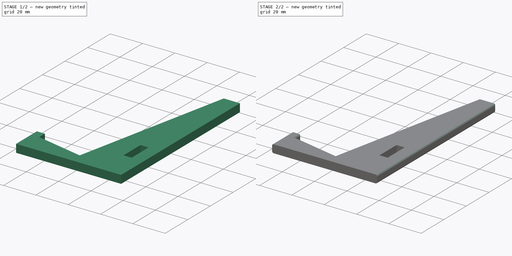
[diagram: build sequence overview — one tinted view per stage of 2, left to right]
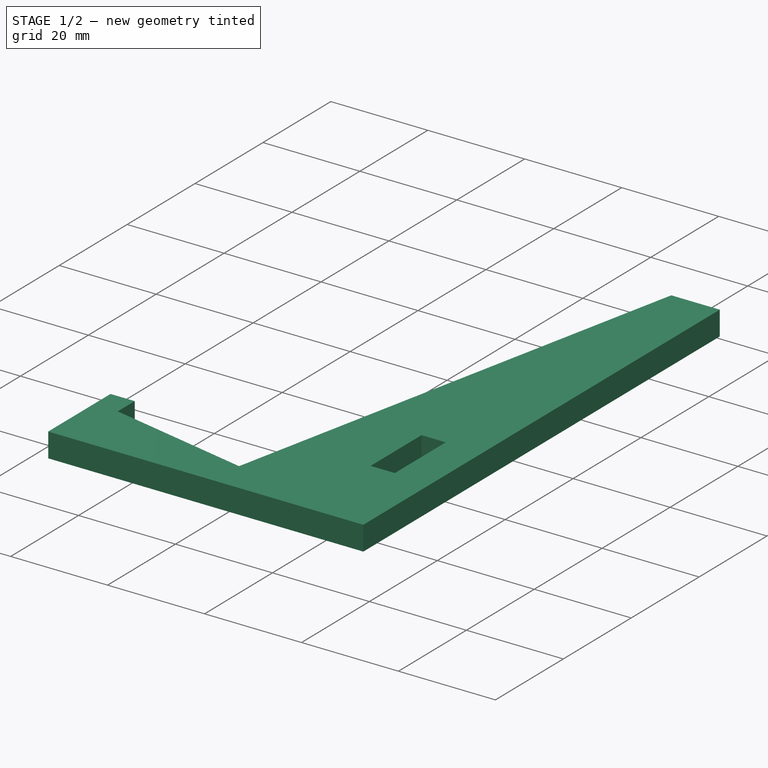
[diagram: stage 1 of 2 — iso view after this stage's code; geometry added in this stage tinted green]
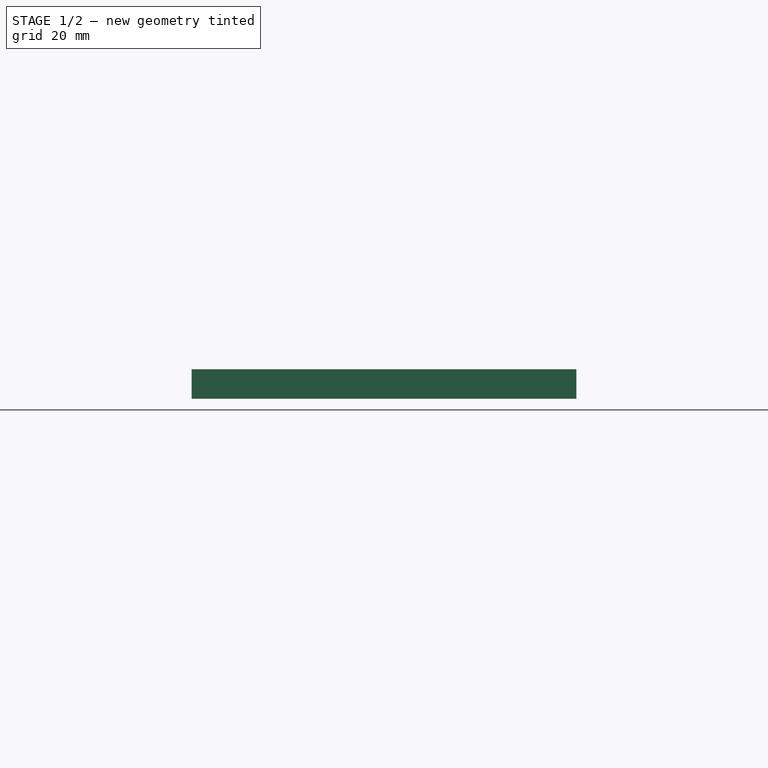
[diagram: stage 1 of 2 — front view after this stage's code; geometry added in this stage tinted green]
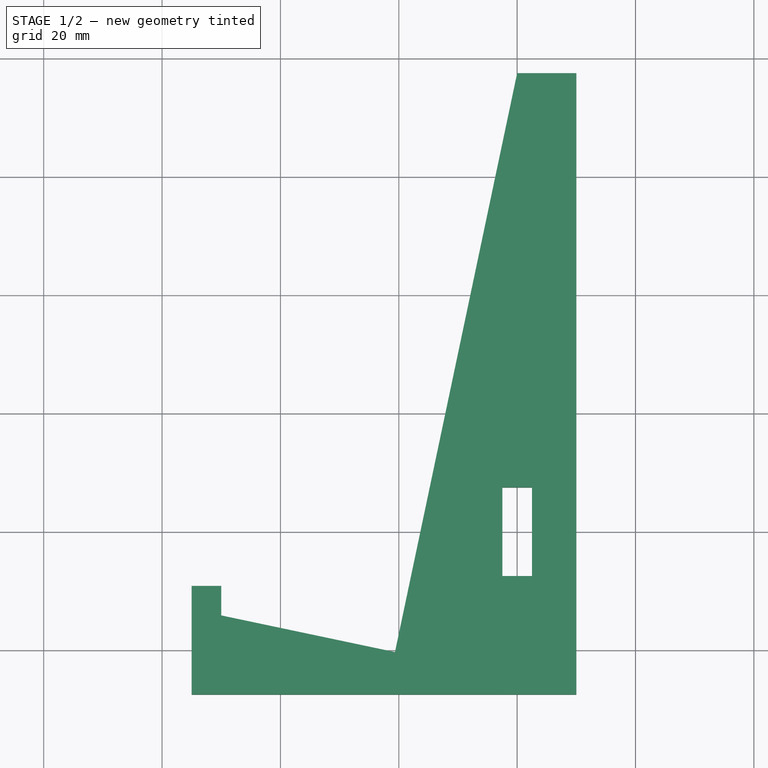
[diagram: stage 1 of 2 — top view after this stage's code; geometry added in this stage tinted green]
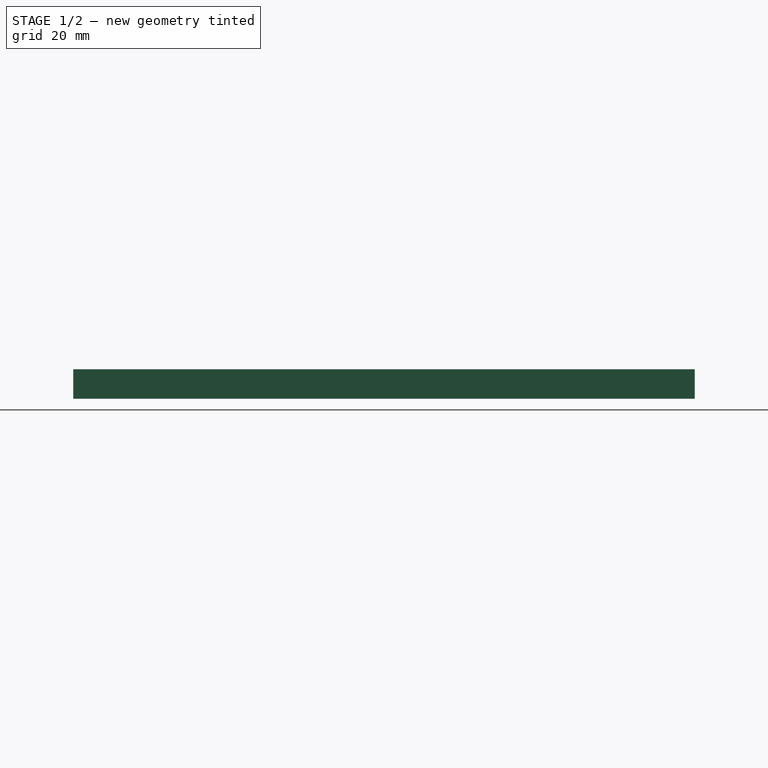
[diagram: stage 1 of 2 — right view after this stage's code; geometry added in this stage tinted green]
FCSTD DOCUMENT  (FreeCAD 1.0R39285 (Git))
Label: endplate
License: All rights reserved
LicenseURL: https://en.wikipedia.org/wiki/All_rights_reserved
objects: Sketcher::SketchObject×2, Part::Extrusion×1, Part::Fillet×1
note: 6 computed .brp shape members not serialized (recipe doc carries the construction recipe); baked Part::Feature solids carry a one-line shape summary decoded from their .brp
EXTERNAL_REF file=dims.FCStd obj=Spreadsheet

FEATURE [Sketcher::SketchObject] Sketch
  ArcFitTolerance = 1e-06
  FullyConstrained = true
  MakeInternals = false
  expr: Constraints[17] = dims#Spreadsheet.thickness
  expr: Constraints[28] = dims#Spreadsheet.thickness
  expr: Constraints[30] = dims#Spreadsheet.thickness * 3
  expr: Constraints[33] = dims#Spreadsheet.tab_height * 2
  sketch-geometry (12):
    g0: LineSegment StartX=10 StartY=77.5 StartZ=0 EndX=10 EndY=-27.5 EndZ=0
    g1: LineSegment StartX=10 StartY=-27.5 StartZ=0 EndX=-55 EndY=-27.5 EndZ=0
    g2: LineSegment StartX=-55 StartY=-27.5 StartZ=0 EndX=-55 EndY=-9.15151 EndZ=0
    g3: LineSegment StartX=-55 StartY=-9.15151 StartZ=0 EndX=-50 EndY=-9.15151 EndZ=0
    g4: LineSegment StartX=-50 StartY=-9.15151 StartZ=0 EndX=-50 EndY=-14.1515 EndZ=0
    g5: LineSegment StartX=-50 StartY=-14.1515 StartZ=0 EndX=-20.6464 EndY=-20.3454 EndZ=0
    g6: LineSegment StartX=-20.6464 StartY=-20.3454 StartZ=0 EndX=0 EndY=77.5 EndZ=0
    g7: LineSegment StartX=0 StartY=77.5 StartZ=0 EndX=10 EndY=77.5 EndZ=0
    g8: LineSegment StartX=-2.5 StartY=7.5 StartZ=0 EndX=-2.5 EndY=-7.5 EndZ=0
    g9: LineSegment StartX=-2.5 StartY=-7.5 StartZ=0 EndX=2.5 EndY=-7.5 EndZ=0
    g10: LineSegment StartX=2.5 StartY=-7.5 StartZ=0 EndX=2.5 EndY=7.5 EndZ=0
    g11: LineSegment StartX=2.5 StartY=7.5 StartZ=0 EndX=-2.5 EndY=7.5 EndZ=0
  constraints (34):
    c: Coincident(g1,g0)
    c: Coincident(g2,g1)
    c: Vertical(g2)
    c: Coincident(g3,g2)
    c: Coincident(g4,g3)
    c: Coincident(g5,g4)
    c: Coincident(g6,g5)
    c: Coincident(g7,g6)
    c: Coincident(g7,g0)
    c: Horizontal(g7)
    c: Perpendicular(g5,g6)
    c: Vertical(g0)
    c: Horizontal(g1)
    c: Distance(g5,g5) = 30
    c: Distance(g6,g6) = 100
    c: Vertical(g4)
    c: Horizontal(g3)
    c: Distance(g4,g4) = 5
    c: Distance(g3,g3) = 5
    c: Distance(g7,g7) = 10
    c: DistanceX(g1,g1) = 65
    c: DistanceY(g0,g0) = 105
    c: Coincident(g8,g9)
    c: Coincident(g9,g10)
    c: Coincident(g10,g11)
    c: Coincident(g11,g8)
    c: Vertical(g8)
    c: Horizontal(g11)
    c: Distance(g9,g9) = 5
    c: Symmetric(g9,g8,g-2)
    c: Distance(g8,g8) = 15
    c: Symmetric(g10,g9,g-1)
    c: PointOnObject(g6,g-2)
    c: DistanceY(g0,g9) = 20
FEATURE [Part::Extrusion] Extrude
  Base = -> Sketch
  Dir = (0,0,1)
  DirMode = 2
  FaceMakerClass = Part::FaceMakerBullseye
  FaceMakerMode = 3
  LengthFwd = 5
  LengthRev = 0
  Solid = true
  Symmetric = false
  expr: LengthFwd = dims#Spreadsheet.thickness
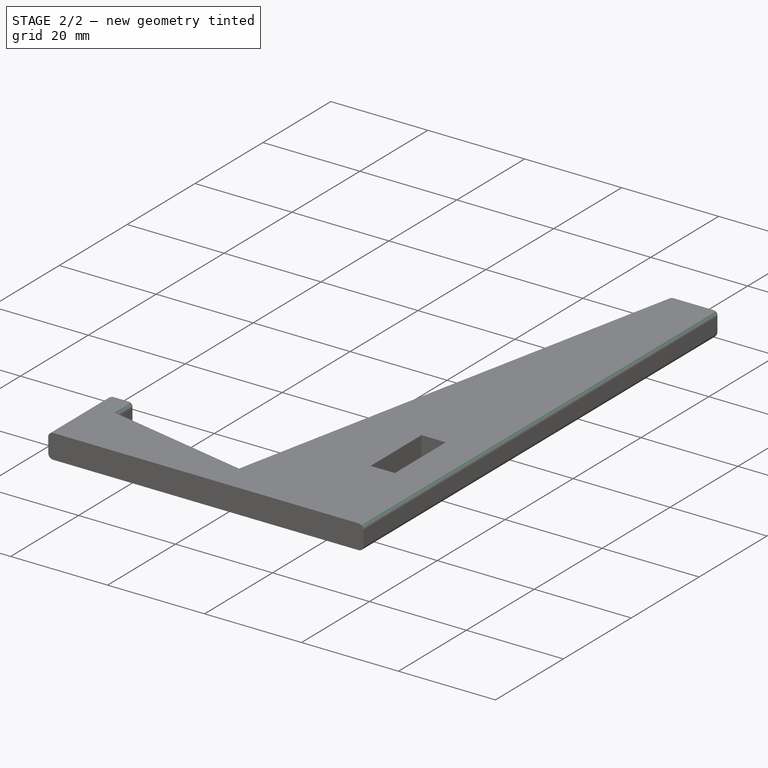
[diagram: stage 2 of 2 — iso view after this stage's code; geometry added in this stage tinted green]
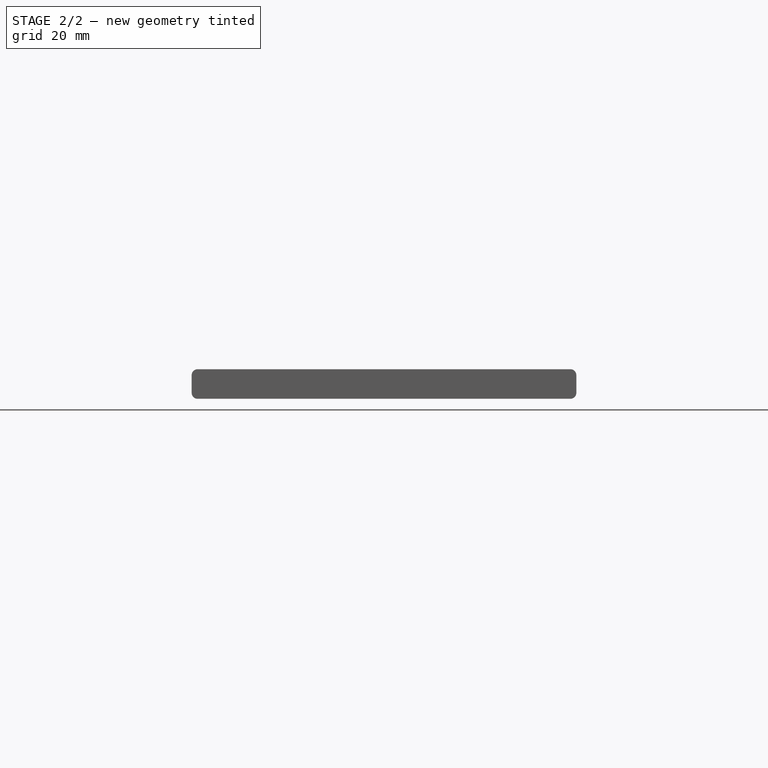
[diagram: stage 2 of 2 — front view after this stage's code; geometry added in this stage tinted green]
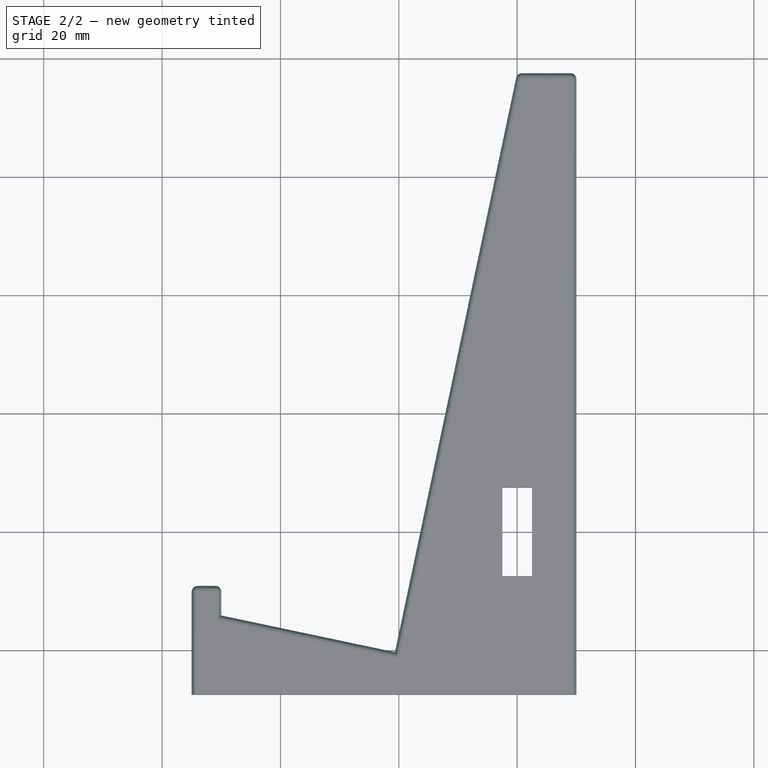
[diagram: stage 2 of 2 — top view after this stage's code; geometry added in this stage tinted green]
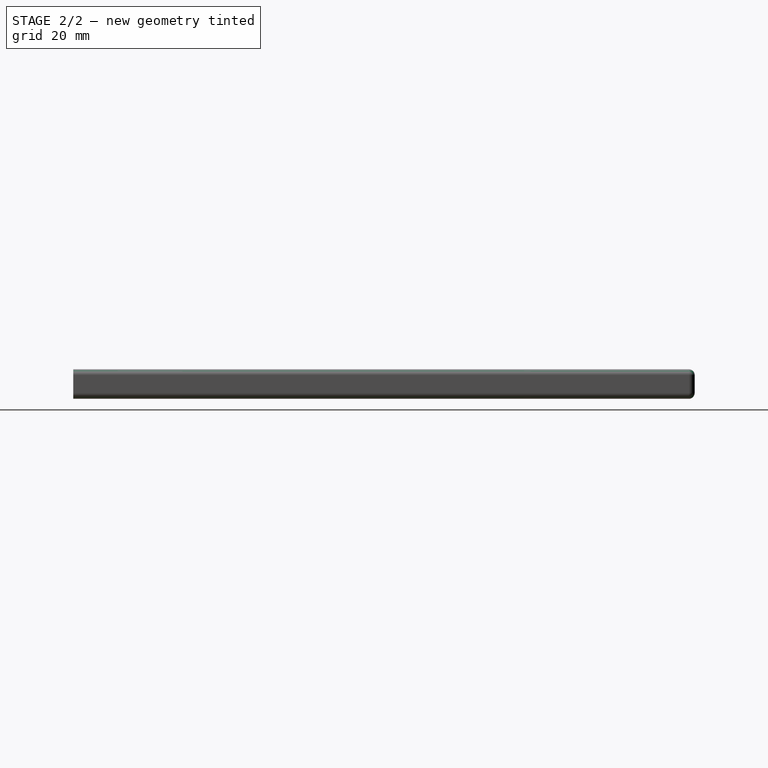
[diagram: stage 2 of 2 — right view after this stage's code; geometry added in this stage tinted green]
FEATURE [Part::Fillet] Fillet
  Base = -> Extrude
  EdgeLinks = -> Extrude [Edge1,Edge3,Edge4,Edge8,Edge9,Edge10,Edge11,Edge12,Edge13,Edge15,Edge16,Edge18,Edge19,Edge20,Edge21,Edge22,Edge23,Edge24]
  Edges = 18 edges r=1: [Edge1,Edge3,Edge4,Edge8,Edge9,Edge10,Edge11,Edge12,Edge13,Edge15,Edge16,Edge18,Edge19,Edge20,Edge21,Edge22,Edge23,Edge24]
FEATURE [Sketcher::SketchObject] Sketch001
  ArcFitTolerance = 1e-06
  AttachmentSupport = -> [Fillet]
  FullyConstrained = true
  MakeInternals = false
  MapMode = 2
  expr: Constraints[8] = dims#Spreadsheet.thickness * 3
  sketch-geometry (4):
    g0: LineSegment StartX=-7.5 StartY=20 StartZ=0 EndX=-7.5 EndY=-20 EndZ=0
    g1: LineSegment StartX=-7.5 StartY=-20 StartZ=0 EndX=7.5 EndY=-20 EndZ=0
    g2: LineSegment StartX=7.5 StartY=-20 StartZ=0 EndX=7.5 EndY=20 EndZ=0
    g3: LineSegment StartX=7.5 StartY=20 StartZ=0 EndX=-7.5 EndY=20 EndZ=0
  constraints (10):
    c: Coincident(g0,g1)
    c: Coincident(g1,g2)
    c: Coincident(g2,g3)
    c: Coincident(g3,g0)
    c: Vertical(g2)
    c: Horizontal(g1)
    c: Symmetric(g0,g0,g-1)
    c: Symmetric(g0,g2,g-2)
    c: Distance(g3,g3) = 15
    c: DistanceY(g2,g2) = 40
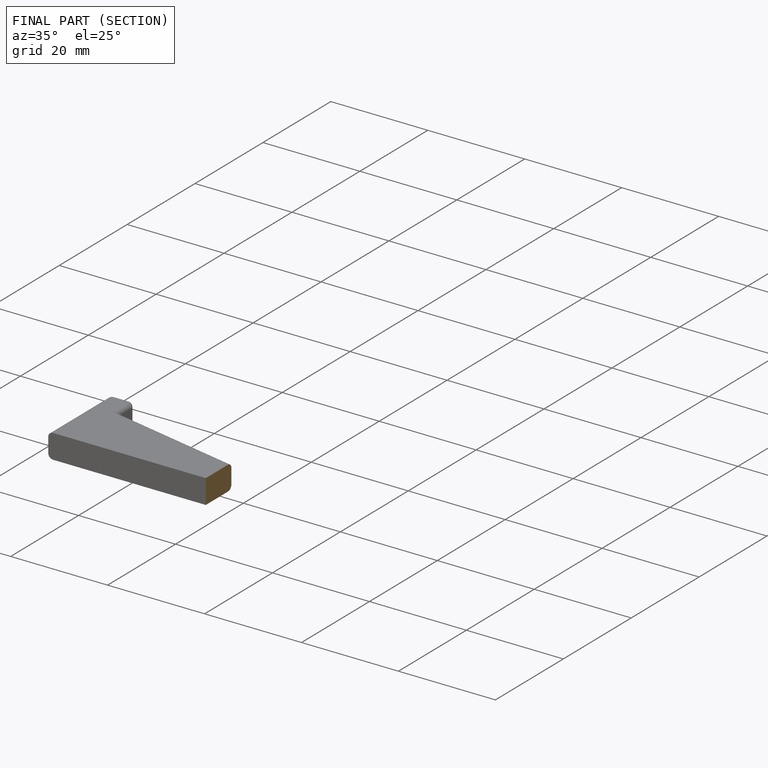
[diagram: finished part — half-section view (interior)]
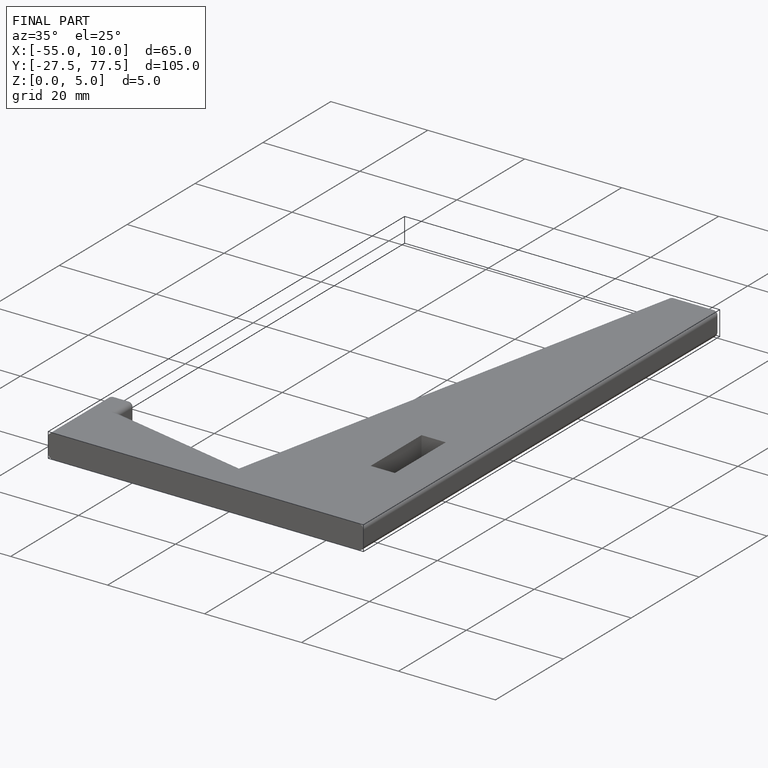
[diagram: finished part — iso view with bounding-box wireframe]
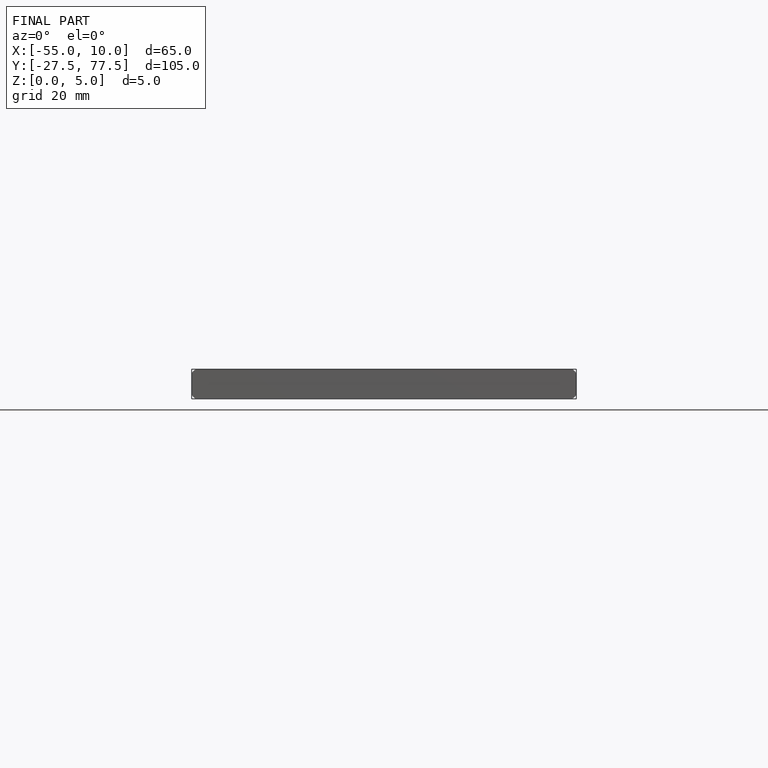
[diagram: finished part — front view with bounding-box wireframe]
